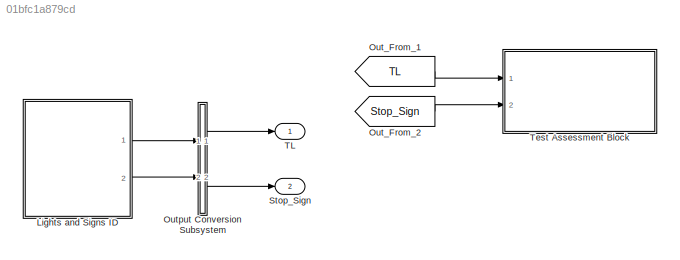
MODEL slx_01bfc1a879cd
KIND model
CONFIG AbsTol = auto
CONFIG EnableMultiTasking = off
CONFIG FixedStep = auto
CONFIG MaxStep = auto
CONFIG MinStep = auto
CONFIG RelTol = 1e-3
CONFIG SampleTimeConstraint = Unconstrained
CONFIG SolverName = FixedStepAuto
CONFIG StartTime = 0.0
CONFIG StopTime = stopTime
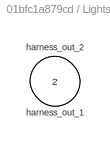
BLOCK [SubSystem] Lights and Signs ID
  Ports = [0, 2]
  RequestExecContextInheritance = off
  Tag = __SL_testing_harness_stub_
BLOCK [Outport] Lights and Signs ID/harness_out_1
BLOCK [Outport] Lights and Signs ID/harness_out_2
  Port = 2
BLOCK [From] Out_From_1
  GotoTag = TL
  TagVisibility = global
BLOCK [From] Out_From_2
  GotoTag = Stop_Sign
  TagVisibility = global
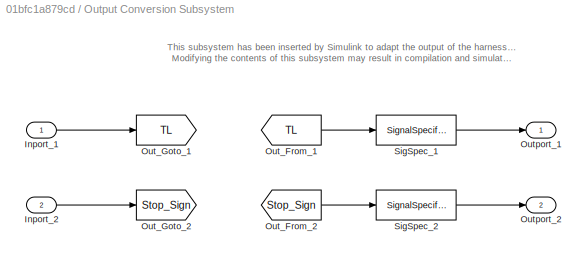
BLOCK [SubSystem] Output Conversion Subsystem
  AttributesFormatString = %<Description>
  Description = Signal spec.\nand routing
  Permissions = ReadOnly
  PermitHierarchicalResolution = ExplicitOnly
  Ports = [2, 2]
  RequestExecContextInheritance = off
  Tag = __SLT_OCS__
  TreatAsGroupedWhenPropagatingVariantConditions = off
  UserDataPersistent = on
BLOCK [Inport] Output Conversion Subsystem/Inport_1
BLOCK [Inport] Output Conversion Subsystem/Inport_2
  Port = 2
BLOCK [From] Output Conversion Subsystem/Out_From_1
  GotoTag = TL
  TagVisibility = global
BLOCK [From] Output Conversion Subsystem/Out_From_2
  GotoTag = Stop_Sign
  TagVisibility = global
BLOCK [Goto] Output Conversion Subsystem/Out_Goto_1
  GotoTag = TL
  TagVisibility = global
BLOCK [Goto] Output Conversion Subsystem/Out_Goto_2
  GotoTag = Stop_Sign
  TagVisibility = global
BLOCK [Outport] Output Conversion Subsystem/Outport_1
BLOCK [Outport] Output Conversion Subsystem/Outport_2
  Port = 2
BLOCK [SignalSpecification] Output Conversion Subsystem/SigSpec_1
  Dimensions = [1]
  OutDataTypeStr = double
  SignalType = real
  VarSizeSig = No
BLOCK [SignalSpecification] Output Conversion Subsystem/SigSpec_2
  Dimensions = [1]
  OutDataTypeStr = double
  SignalType = real
  VarSizeSig = No
BLOCK [Outport] Stop_Sign
  Port = 2
BLOCK [Outport] TL
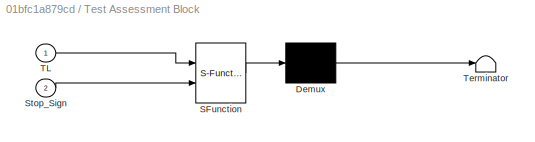
BLOCK [SubSystem] Test Assessment Block
  ErrorFcn = Stateflow.Translate.translate
  PermitHierarchicalResolution = ExplicitOnly
  Ports = [2]
  RequestExecContextInheritance = off
  SFBlockType = Test Sequence
  ShowPortLabels = none
  Tag = __SLT_ASMT__
  TreatAsAtomicUnit = on
BLOCK [Demux] Test Assessment Block/ Demux 
  Outputs = 1
  Ports = [1, 1]
BLOCK [S-Function] Test Assessment Block/ SFunction 
  EnableBusSupport = off
  FunctionName = sf_sfun
  PortCounts = [2 1]
  Ports = [2, 1]
  SFcnIsStateOwnerBlock = off
  SFunctionDeploymentMode = off
  Tag = Stateflow S-Function 1
BLOCK [Terminator] Test Assessment Block/ Terminator 
BLOCK [Inport] Test Assessment Block/Stop_Sign
  Port = 2
BLOCK [Inport] Test Assessment Block/TL
ANNOTATION Output Conversion Subsystem: This subsystem has been inserted by Simulink to adapt the output of the harnessed component to the interface required by the sink blocks. Modifying the contents of this subsystem may result in compilation and simulation failure.
LINE Lights and Signs ID:1 -> Output Conversion Subsystem:1
LINE Lights and Signs ID:2 -> Output Conversion Subsystem:2
LINE Out_From_1:1 -> Test Assessment Block:1
LINE Out_From_2:1 -> Test Assessment Block:2
LINE Output Conversion Subsystem/Inport_1:1 -> Output Conversion Subsystem/Out_Goto_1:1
LINE Output Conversion Subsystem/Inport_2:1 -> Output Conversion Subsystem/Out_Goto_2:1
LINE Output Conversion Subsystem/Out_From_1:1 -> Output Conversion Subsystem/SigSpec_1:1
LINE Output Conversion Subsystem/Out_From_2:1 -> Output Conversion Subsystem/SigSpec_2:1
LINE Output Conversion Subsystem/SigSpec_1:1 -> Output Conversion Subsystem/Outport_1:1
LINE Output Conversion Subsystem/SigSpec_2:1 -> Output Conversion Subsystem/Outport_2:1
LINE Output Conversion Subsystem:1 -> TL:1
LINE Output Conversion Subsystem:2 -> Stop_Sign:1
CHART Test Assessment Block states=3 transitions=10
  STATE_LABEL 'Assessments'
  STATE_LABEL "VerifyThis\nverify(numel(TL)==2,'Scenario Contains req traffic lights')\nverify(numel(Stop_Sign)==1,'Scenario Contains req stop signs')"
  STATE_LABEL 'End'
  STATE_LABEL '[t==0\n]'
  STATE_LABEL '[~in(Assessments.VerifyThis)]'
  STATE_LABEL '[~in(Assessments.End)]'
  STATE_LABEL "VerifyThis\nverify(numel(TL)==2,'Scenario Contains req traffic lights')\nverify(numel(Stop_Sign)==1,'Scenario Contains req stop signs')"
  STATE_LABEL 'End'
